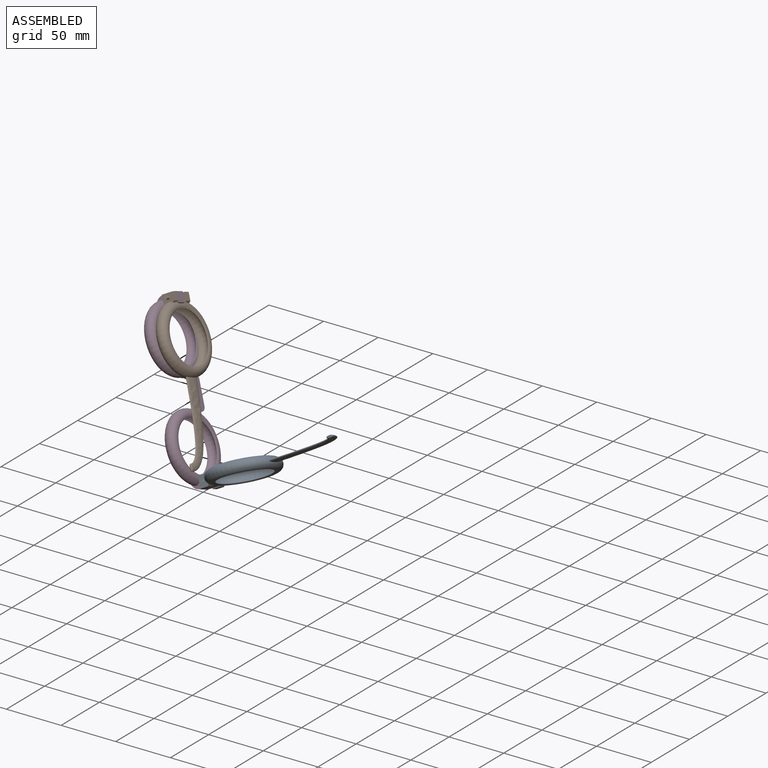
[diagram: assembled view]
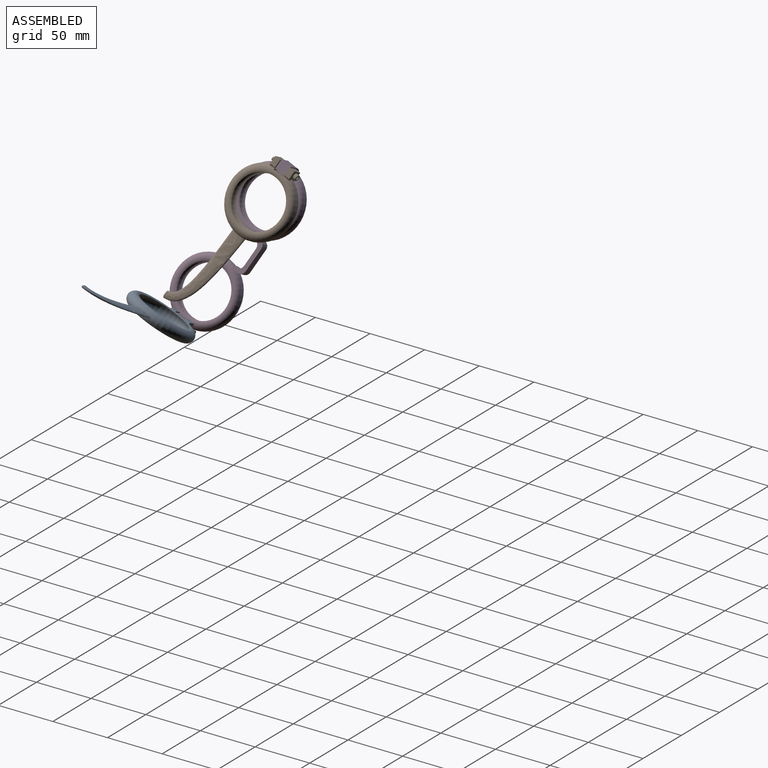
[diagram: assembled view, second angle]
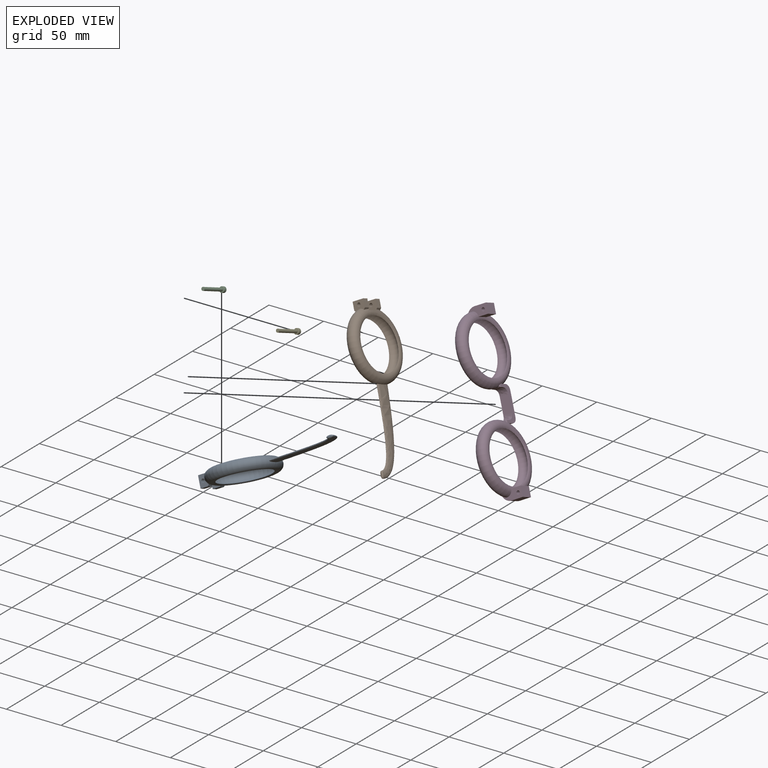
[diagram: exploded view]
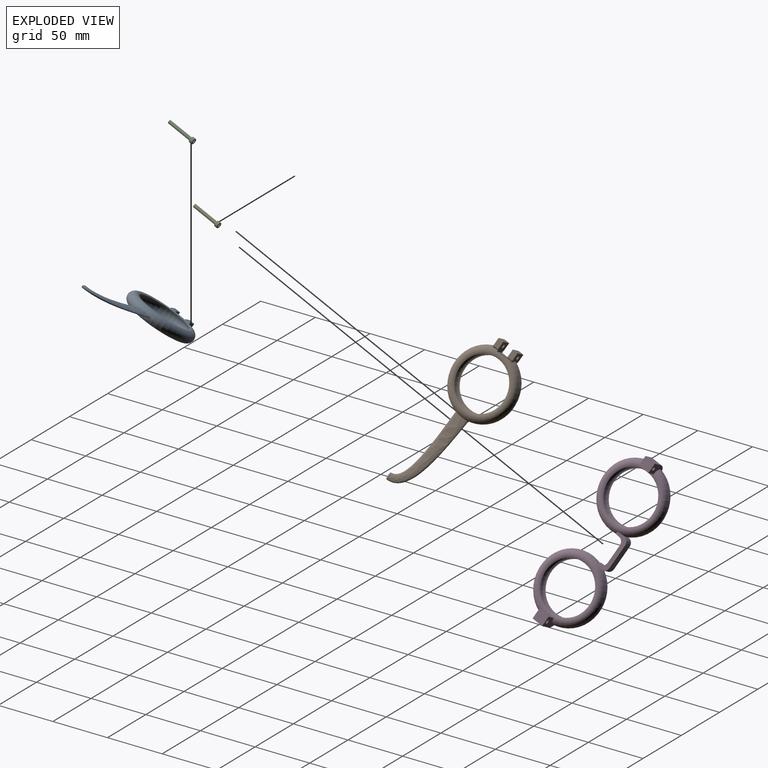
[diagram: exploded view, second angle]
ASSEMBLY  parts=5 mates=4
PART A: 25 faces, bbox 10.5x138.9x65.5 mm
  f0: plane 7x5mm, normal (-1,0,0), area 35mm2, adj f7,f9,f12,f17
  f1: plane 7x5mm, normal (1,0,0), area 35mm2, adj f7,f9,f12,f15
  f2: plane 10.34x5mm, normal (0,-1,0), area 51.7mm2, adj f5,f6,f8,f11
  f3: torus R=25.04mm, axis (1,0,0), area 3371.8mm2, adj f4,f5,f7,f10,f11,f12,f15,f16
  f4: torus R=21.3mm, axis (1,0,0), area 1920.9mm2, adj f3
  f5: plane 10.34x8.51mm, normal (0,0,1), area 69.5mm2, adj f2,f3,f6,f8,f14,f16,f18
  f6: plane 7x5mm, normal (-1,0,0), area 35mm2, adj f2,f5,f11,f18
  f7: plane 10.34x8.51mm, normal (0,0,-1), area 69.5mm2, adj f0,f1,f3,f9,f13,f15,f17
  f8: plane 7x5mm, normal (1,0,0), area 35mm2, adj f2,f5,f11,f16
  f9: plane 10.34x5mm, normal (0,-1,0), area 51.7mm2, adj f0,f1,f7,f12
  f10: plane 10x9.97mm, normal (0,-1,0), area 98.8mm2, adj f3,f11,f12
  f11: plane 10.35x9.01mm, normal (0,0,-1), area 82.9mm2, adj f2,f3,f6,f8,f10,f14,f16,f18
  f12: plane 10.35x9.01mm, normal (0,0,1), area 82.9mm2, adj f0,f1,f3,f9,f10,f13,f15,f17
  f13: cylinder r=1.6mm len=5mm, axis (0,0,1), area 50.3mm2, adj f7,f12
  f14: cylinder r=1.6mm len=5mm, axis (0,0,1), area 50.3mm2, adj f5,f11
  f15: plane 5.16x1.67mm, normal (0.71,0.71,0), area 8.2mm2, adj f1,f3,f7,f12
  f16: plane 5.16x1.67mm, normal (0.71,0.71,0), area 8.2mm2, adj f3,f5,f8,f11
  f17: plane 5.16x1.67mm, normal (-0.71,0.71,0), area 8.2mm2, adj f0,f3,f7,f12
  f18: plane 5.16x1.67mm, normal (-0.71,0.71,0), area 8.2mm2, adj f3,f5,f6,f11
  f19: plane 3.49x0.5mm, normal (0,0,-1), area 1.2mm2, adj f22,f23
  f20: bspline ~73.93x28.13mm, area 1699.5mm2, adj f3,f21,f22,f23,f24
  f21: bspline ~1.42x1.41mm, area 1.4mm2, adj f20,f22,f23
  f22: bspline ~5.4x1.45mm, area 7mm2, adj f19,f20,f21,f24
  f23: bspline ~5.53x1.46mm, area 7mm2, adj f19,f20,f21,f24
  f24: bspline ~1.42x1.41mm, area 1.9mm2, adj f20,f22,f23
PART B: same geometry as A
PART C: 14 faces, bbox 5.4x5.4x26 mm
  f0: plane 2x1.09mm, normal (-0.76,-0.66,0), area 2.9mm2, adj f1,f5,f7,f8
  f1: plane 2x1.36mm, normal (-0.95,0.33,0), area 2.9mm2, adj f0,f2,f7,f8
  f2: plane 2x1.42mm, normal (-0.19,0.98,0), area 2.9mm2, adj f1,f3,f7,f8
  f3: plane 2x1.09mm, normal (0.76,0.66,0), area 2.9mm2, adj f2,f4,f7,f8
  f4: plane 2x1.36mm, normal (0.95,-0.33,0), area 2.9mm2, adj f3,f5,f7,f8
  f5: plane 2x1.42mm, normal (0.19,-0.98,0), area 2.9mm2, adj f0,f4,f7,f8
  f6: cylinder r=2.5mm len=5mm, axis (0,0,-1), area 37.7mm2, adj f12,f13
  f7: plane 4.4x4.4mm, normal (0,0,-1), area 9.8mm2, adj f0,f1,f2,f3,f4,f5,f13
  f8: plane 2.83x2.73mm, normal (0,0,-1), area 5.4mm2, adj f0,f1,f2,f3,f4,f5
  f9: plane 4.4x4.4mm, normal (0,0,1), area 8.1mm2, adj f10,f12
  f10: cylinder r=1.5mm len=23mm, axis (0,0,-1), area 216.8mm2, adj f9,f11
  f11: plane 3x3mm, normal (0,0,1), area 7.1mm2, adj f10
  f12: torus R=2.2mm, axis (0,0,1), area 7.1mm2, adj f6,f9
  f13: torus R=2.2mm, axis (0,0,1), area 7.1mm2, adj f6,f7
PART D: 38 faces, bbox 20.3x151.3x66.1 mm
  f0: plane 19.83x8.96mm, normal (0,0,1), area 103.3mm2, adj f1,f3,f4,f5,f7,f8
  f1: plane 10.26x9.54mm, normal (0,-1,0), area 92.7mm2, adj f0,f2,f4,f5
  f2: plane 19.81x8.95mm, normal (0,0,-1), area 103.3mm2, adj f1,f3,f4,f5,f7,f8
  f3: plane 10.94x10mm, normal (0,1,0), area 109.2mm2, adj f0,f2,f4,f7
  f4: plane 10x8.69mm, normal (1,0,0), area 86.9mm2, adj f0,f1,f2,f3
  f5: torus R=25mm, axis (1,0,0), area 3409.2mm2, adj f0,f1,f2,f6,f7,f9,f21,f22
  f6: torus R=21.26mm, axis (1,0,0), area 1917.7mm2, adj f5
  f7: bspline ~14.06x8.7mm, area 127.7mm2, adj f0,f2,f3,f5
  f8: cylinder r=1.6mm len=10mm, axis (0,0,-1), area 100.5mm2, adj f0,f2
  f9: plane 5.32x2.99mm, normal (0,1,0), area 3.9mm2, adj f5,f21,f31
  f10: plane 10x9.28mm, normal (0,1,0), area 92.7mm2, adj f11,f12,f14,f15
  f11: plane 19.81x8.94mm, normal (0,0,1), area 102.9mm2, adj f10,f13,f14,f15,f17,f18
  f12: plane 19.83x8.96mm, normal (0,0,-1), area 102.9mm2, adj f10,f13,f14,f15,f17,f18
  f13: plane 10.94x10mm, normal (0,-1,0), area 109.2mm2, adj f11,f12,f14,f17
  f14: plane 10x8.69mm, normal (1,0,0), area 86.9mm2, adj f10,f11,f12,f13
  f15: torus R=25.04mm, axis (1,0,0), area 3413.2mm2, adj f10,f11,f12,f16,f17,f19,f21,f23
  f16: torus R=21.3mm, axis (1,0,0), area 1920.9mm2, adj f15
  f17: bspline ~14.08x8.69mm, area 127.4mm2, adj f11,f12,f13,f15
  f18: cylinder r=1.6mm len=10mm, axis (0,0,1), area 100.5mm2, adj f11,f12
  f19: plane 5.41x3.06mm, normal (0,-1,0), area 4mm2, adj f15,f21,f30
  f20: plane 8.09x1.81mm, normal (0,-1,0), area 14.6mm2, adj f21,f23,f29,f36
  f21: plane 30.78x11.3mm, normal (1,0,0), area 148.8mm2, adj f5,f9,f15,f19,f20,f24,f25,f26
  f22: plane 4.46x2.67mm, normal (0,1,0), area 3.1mm2, adj f5,f23,f31
  f23: plane 30.78x11.3mm, normal (-1,0,0), area 148.2mm2, adj f5,f15,f20,f22,f24,f25,f26,f27
  f24: plane 19.41x8.09mm, normal (0,0,-1), area 157.1mm2, adj f21,f23,f30,f31
  f25: plane 14.41x8.09mm, normal (0,0,1), area 116.7mm2, adj f21,f23,f28,f29
  f26: plane 8.09x1.81mm, normal (0,1,0), area 14.6mm2, adj f21,f23,f28,f34
  f27: plane 4.54x2.74mm, normal (0,-1,0), area 3.2mm2, adj f15,f23,f30
  f28: bspline ~8.9x5.55mm, area 73.1mm2, adj f21,f23,f25,f26
  f29: bspline ~8.9x5.55mm, area 73.1mm2, adj f20,f21,f23,f25
  f30: bspline ~8.9x5.55mm, area 73.1mm2, adj f15,f19,f21,f23,f24,f27
  f31: bspline ~8.9x5.55mm, area 73.1mm2, adj f5,f9,f21,f22,f23,f24
  f32: cylinder r=1.16mm len=2.25mm, axis (0,-1,0), area 1.8mm2, adj f15,f21,f34
  f33: cylinder r=1.16mm len=2.02mm, axis (0,1,0), area 1.6mm2, adj f15,f23,f34
  f34: cylinder r=1.16mm len=8.09mm, axis (-1,0,0), area 6.2mm2, adj f15,f26,f32,f33
  f35: cylinder r=1.16mm len=2.23mm, axis (0,1,0), area 1.8mm2, adj f5,f21,f36
  f36: cylinder r=1.16mm len=8.09mm, axis (1,0,0), area 6mm2, adj f5,f20,f35,f37
  f37: cylinder r=1.16mm len=2mm, axis (0,-1,0), area 1.5mm2, adj f5,f23,f36
PART E: same geometry as C
PLACE A rot(axis=(-0.46,-0.72,-0.52),150.1deg) t=(230.54,222.27,-16.29)mm
PLACE B rot(axis=(-0.96,-0.21,-0.21),114.7deg) t=(132.87,212.86,-65.59)mm
PLACE C rot(axis=(0.7,0.36,-0.62),92.1deg) t=(140.12,218.1,-94.77)mm
PLACE D rot(axis=(0.91,-0.29,0.3),72.9deg) t=(74.31,248.56,12.85)mm fixed
PLACE E rot(axis=(0.18,0.55,-0.82),159.6deg) t=(59.57,264.22,13.5)mm
MATE slider B.f13 <-> E.f6  axis (0.09,0.93,-0.36) through (62.32,264.8,24.16)mm
MATE revolute B.f13 <-> D.f8  axis (0.09,0.93,-0.36) through (61.87,260.15,25.94)mm
MATE slider A.f13 <-> C.f6  axis (0.09,0.93,-0.36) through (129.47,214.54,-90.16)mm
MATE revolute D.f18 <-> A.f13  axis (0.09,0.93,-0.36) through (129.02,209.89,-88.38)mm
